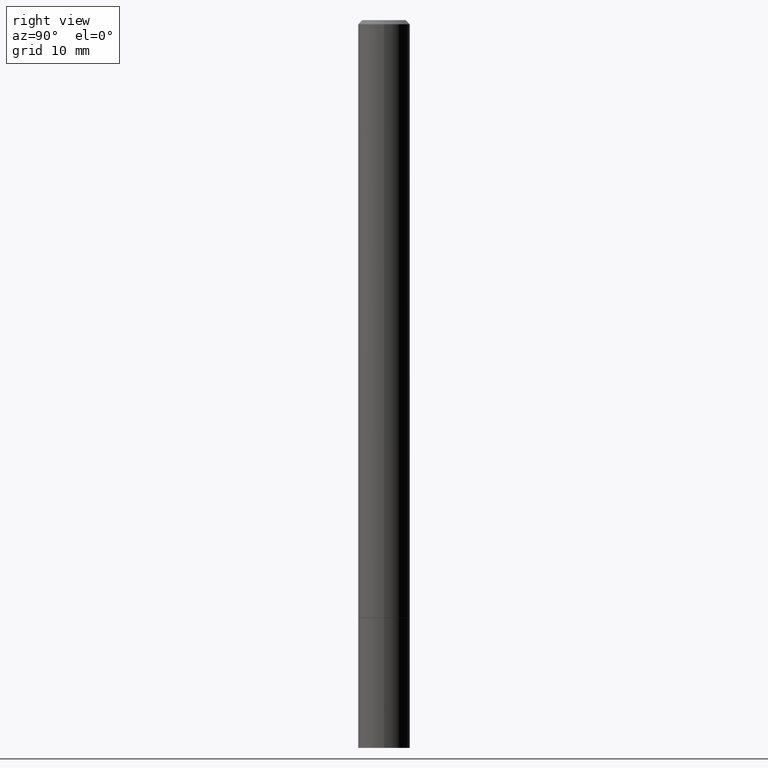
[diagram: clean part render]
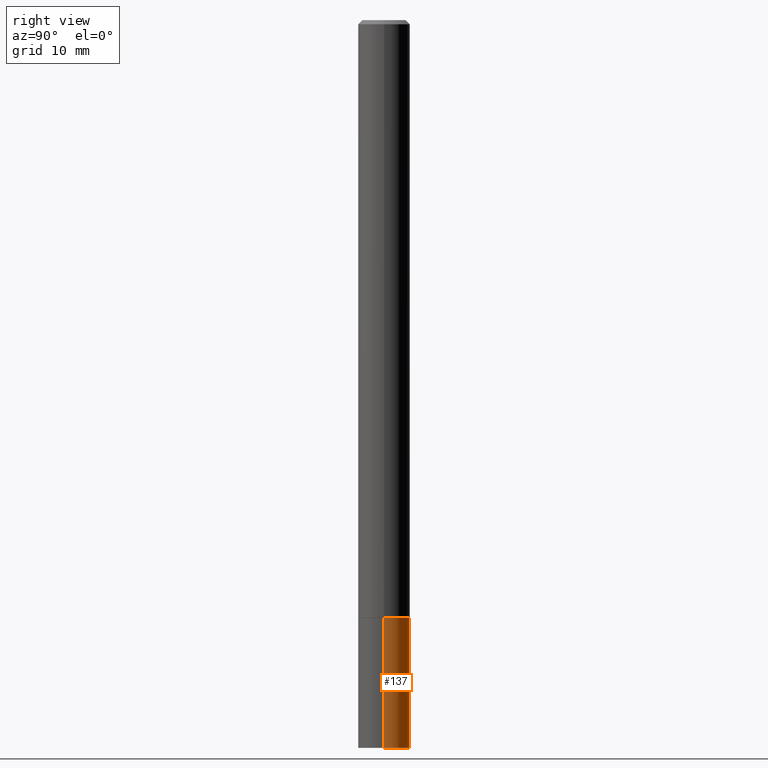
[diagram: same view with one face highlighted and labeled with its STEP entity id]
A machine part, right view. The second image highlights one B-rep face of the part: STEP entity #137.
In plain terms, the highlighted cylindrical surface (edge-blend (fillet) strip) has radius 3.175 mm, axis along (-0, 0, 1).
Its self-contained STEP definition (entity closure, byte-faithful):
#8 = CARTESIAN_POINT ( 'NONE',  ( 0.1250000000000000278, -8.728703347107836346E-16, 6.095220969744921142E-30 ) ) ;
#29 = EDGE_CURVE ( 'NONE', #203, #181, #60, .T. ) ;
#44 = LINE ( 'NONE', #165, #162 ) ;
#49 = ORIENTED_EDGE ( 'NONE', *, *, #239, .F. ) ;
#60 = CIRCLE ( 'NONE', #263, 0.1250000000000000278 ) ;
#66 = VECTOR ( 'NONE', #95, 39.37007874015748143 ) ;
#76 = CARTESIAN_POINT ( 'NONE',  ( 8.559140821647976968E-29, -1.222018468595100934E-14, -3.500000000000000000 ) ) ;
#86 = ORIENTED_EDGE ( 'NONE', *, *, #309, .T. ) ;
#92 = CARTESIAN_POINT ( 'NONE',  ( 7.030722817782267716E-29, -1.003800884917404311E-14, -2.875000000000000000 ) ) ;
#93 = DIRECTION ( 'NONE',  ( -2.445468806185136597E-29, 3.491481338843145583E-15, 1.000000000000000000 ) ) ;
#95 = DIRECTION ( 'NONE',  ( -2.445468806185136877E-29, 3.491481338843145188E-15, 1.000000000000000000 ) ) ;
#96 = AXIS2_PLACEMENT_3D ( 'NONE', #156, #272, #324 ) ;
#100 = EDGE_LOOP ( 'NONE', ( #234, #86, #200, #49 ) ) ;
#105 = CYLINDRICAL_SURFACE ( 'NONE', #96, 0.1250000000000000278 ) ;
#108 = AXIS2_PLACEMENT_3D ( 'NONE', #76, #193, #243 ) ;
#131 = CARTESIAN_POINT ( 'NONE',  ( 0.1250000000000000278, -1.091087918388482645E-14, -2.875000000000000000 ) ) ;
#137 = ADVANCED_FACE ( 'NONE', ( #333 ), #105, .T. ) ;
#155 = VERTEX_POINT ( 'NONE', #330 ) ;
#156 = CARTESIAN_POINT ( 'NONE',  ( 0.000000000000000000, 0.000000000000000000, 0.000000000000000000 ) ) ;
#162 = VECTOR ( 'NONE', #211, 39.37007874015748143 ) ;
#165 = CARTESIAN_POINT ( 'NONE',  ( -0.1250000000000000278, 8.881784197001254296E-16, -6.148668862818634329E-30 ) ) ;
#176 = EDGE_CURVE ( 'NONE', #236, #155, #253, .T. ) ;
#181 = VERTEX_POINT ( 'NONE', #307 ) ;
#193 = DIRECTION ( 'NONE',  ( -2.445468806185136597E-29, 3.491481338843145583E-15, 1.000000000000000000 ) ) ;
#200 = ORIENTED_EDGE ( 'NONE', *, *, #29, .F. ) ;
#203 = VERTEX_POINT ( 'NONE', #131 ) ;
#211 = DIRECTION ( 'NONE',  ( -2.445468806185136877E-29, 3.491481338843145188E-15, 1.000000000000000000 ) ) ;
#232 = DIRECTION ( 'NONE',  ( 1.000000000000000000, -6.982962677686261189E-15, 0.000000000000000000 ) ) ;
#234 = ORIENTED_EDGE ( 'NONE', *, *, #176, .T. ) ;
#236 = VERTEX_POINT ( 'NONE', #266 ) ;
#239 = EDGE_CURVE ( 'NONE', #236, #203, #293, .T. ) ;
#243 = DIRECTION ( 'NONE',  ( 1.000000000000000000, -6.982962677686261189E-15, 0.000000000000000000 ) ) ;
#253 = CIRCLE ( 'NONE', #108, 0.1250000000000000278 ) ;
#263 = AXIS2_PLACEMENT_3D ( 'NONE', #92, #93, #232 ) ;
#266 = CARTESIAN_POINT ( 'NONE',  ( 0.1250000000000000278, -1.309305502066179110E-14, -3.500000000000000000 ) ) ;
#272 = DIRECTION ( 'NONE',  ( -2.445468806185136597E-29, 3.491481338843145583E-15, 1.000000000000000000 ) ) ;
#293 = LINE ( 'NONE', #8, #66 ) ;
#307 = CARTESIAN_POINT ( 'NONE',  ( -0.1250000000000000278, -1.024091834786239941E-14, -2.875000000000000000 ) ) ;
#309 = EDGE_CURVE ( 'NONE', #155, #181, #44, .T. ) ;
#324 = DIRECTION ( 'NONE',  ( 1.000000000000000000, -6.982962677686267499E-15, 4.876176775795935793E-29 ) ) ;
#330 = CARTESIAN_POINT ( 'NONE',  ( -0.1250000000000000278, -1.024091834786239941E-14, -3.500000000000000000 ) ) ;
#333 = FACE_OUTER_BOUND ( 'NONE', #100, .T. ) ;